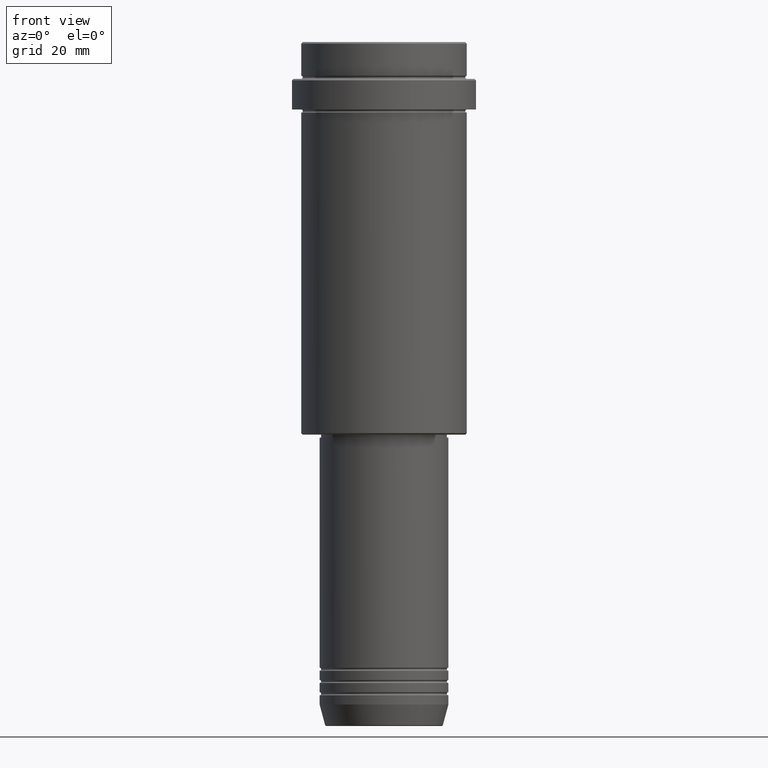
[diagram: clean part render]
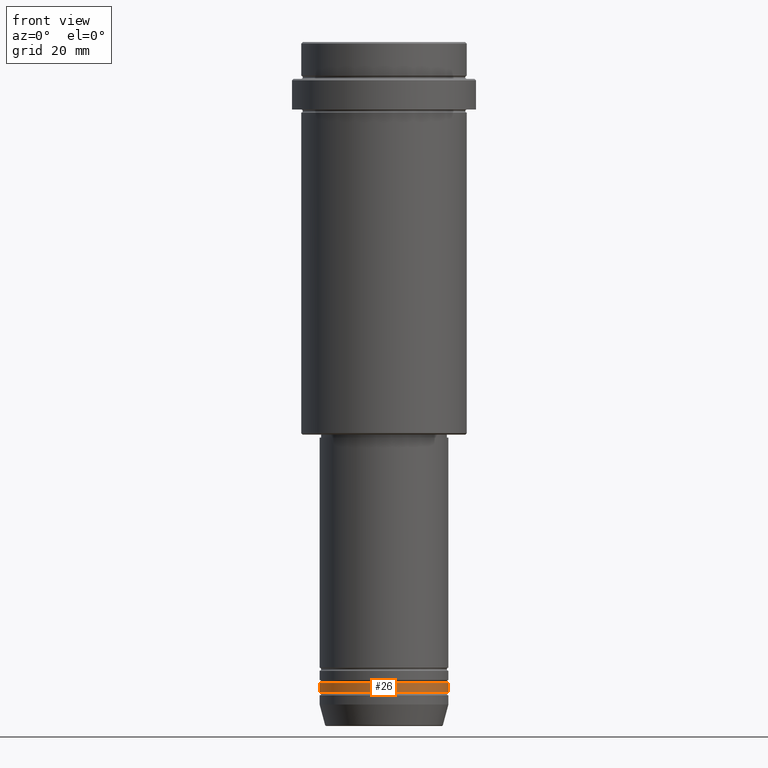
[diagram: same view with one face highlighted and labeled with its STEP entity id]
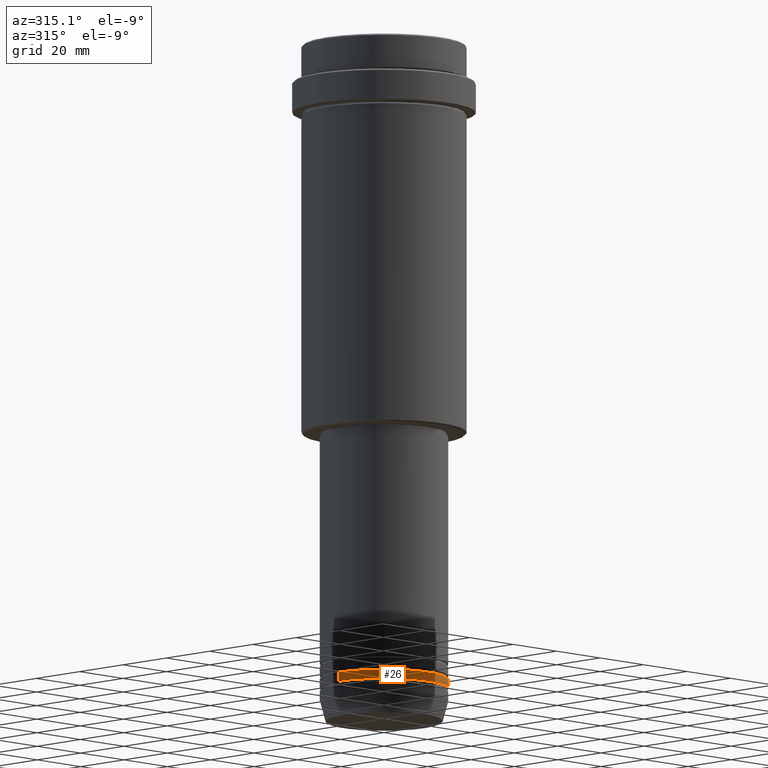
[diagram: same view with one face highlighted and labeled with its STEP entity id]
A machine part, front view. The second image highlights one B-rep face of the part: STEP entity #26.
A second angle (auxiliary view) of the same face is appended — the face is thin or edge-on in the first view.
In plain terms, the highlighted cylindrical surface (partial cylindrical patch) has radius 21 mm, axis along (-0, -0, 1).
Its self-contained STEP definition (entity closure, byte-faithful):
#4 = CARTESIAN_POINT ( 'NONE',  ( -21.00000000000000000, 2.571758278209441661E-15, -208.9999999999999147 ) ) ;
#5 = DIRECTION ( 'NONE',  ( -0.000000000000000000, -0.000000000000000000, 1.000000000000000000 ) ) ;
#26 = ADVANCED_FACE ( 'NONE', ( #318 ), #196, .T. ) ;
#45 = VERTEX_POINT ( 'NONE', #642 ) ;
#57 = EDGE_LOOP ( 'NONE', ( #841, #508, #1273, #1344 ) ) ;
#98 = DIRECTION ( 'NONE',  ( -0.000000000000000000, -0.000000000000000000, 1.000000000000000000 ) ) ;
#153 = CIRCLE ( 'NONE', #448, 21.00000000000000000 ) ;
#170 = CARTESIAN_POINT ( 'NONE',  ( 21.00000000000000000, 0.000000000000000000, -211.9999999999999147 ) ) ;
#196 = CYLINDRICAL_SURFACE ( 'NONE', #985, 21.00000000000000000 ) ;
#292 = CARTESIAN_POINT ( 'NONE',  ( 0.000000000000000000, 0.000000000000000000, 0.000000000000000000 ) ) ;
#318 = FACE_OUTER_BOUND ( 'NONE', #57, .T. ) ;
#338 = VERTEX_POINT ( 'NONE', #170 ) ;
#370 = AXIS2_PLACEMENT_3D ( 'NONE', #953, #859, #970 ) ;
#372 = DIRECTION ( 'NONE',  ( -0.000000000000000000, -0.000000000000000000, 1.000000000000000000 ) ) ;
#375 = EDGE_CURVE ( 'NONE', #338, #45, #1052, .T. ) ;
#389 = CARTESIAN_POINT ( 'NONE',  ( -21.00000000000000000, 2.571758278209441661E-15, -211.9999999999999147 ) ) ;
#440 = EDGE_CURVE ( 'NONE', #1323, #338, #1194, .T. ) ;
#448 = AXIS2_PLACEMENT_3D ( 'NONE', #1188, #5, #864 ) ;
#476 = CARTESIAN_POINT ( 'NONE',  ( 21.00000000000000000, 0.000000000000000000, 0.000000000000000000 ) ) ;
#508 = ORIENTED_EDGE ( 'NONE', *, *, #440, .T. ) ;
#527 = DIRECTION ( 'NONE',  ( 1.000000000000000000, 0.000000000000000000, 0.000000000000000000 ) ) ;
#558 = VECTOR ( 'NONE', #1265, 1000.000000000000000 ) ;
#609 = LINE ( 'NONE', #1375, #558 ) ;
#642 = CARTESIAN_POINT ( 'NONE',  ( 21.00000000000000000, 0.000000000000000000, -208.9999999999999147 ) ) ;
#841 = ORIENTED_EDGE ( 'NONE', *, *, #1319, .F. ) ;
#859 = DIRECTION ( 'NONE',  ( -0.000000000000000000, -0.000000000000000000, 1.000000000000000000 ) ) ;
#864 = DIRECTION ( 'NONE',  ( 1.000000000000000000, 0.000000000000000000, 0.000000000000000000 ) ) ;
#894 = EDGE_CURVE ( 'NONE', #1352, #45, #153, .T. ) ;
#953 = CARTESIAN_POINT ( 'NONE',  ( 0.000000000000000000, 0.000000000000000000, -211.9999999999999147 ) ) ;
#970 = DIRECTION ( 'NONE',  ( 1.000000000000000000, 0.000000000000000000, 0.000000000000000000 ) ) ;
#971 = VECTOR ( 'NONE', #372, 1000.000000000000000 ) ;
#985 = AXIS2_PLACEMENT_3D ( 'NONE', #292, #98, #527 ) ;
#1052 = LINE ( 'NONE', #476, #971 ) ;
#1188 = CARTESIAN_POINT ( 'NONE',  ( 0.000000000000000000, 0.000000000000000000, -208.9999999999999147 ) ) ;
#1194 = CIRCLE ( 'NONE', #370, 21.00000000000000000 ) ;
#1265 = DIRECTION ( 'NONE',  ( -0.000000000000000000, -0.000000000000000000, 1.000000000000000000 ) ) ;
#1273 = ORIENTED_EDGE ( 'NONE', *, *, #375, .T. ) ;
#1319 = EDGE_CURVE ( 'NONE', #1323, #1352, #609, .T. ) ;
#1323 = VERTEX_POINT ( 'NONE', #389 ) ;
#1344 = ORIENTED_EDGE ( 'NONE', *, *, #894, .F. ) ;
#1352 = VERTEX_POINT ( 'NONE', #4 ) ;
#1375 = CARTESIAN_POINT ( 'NONE',  ( -21.00000000000000000, 2.571758278209441661E-15, 0.000000000000000000 ) ) ;